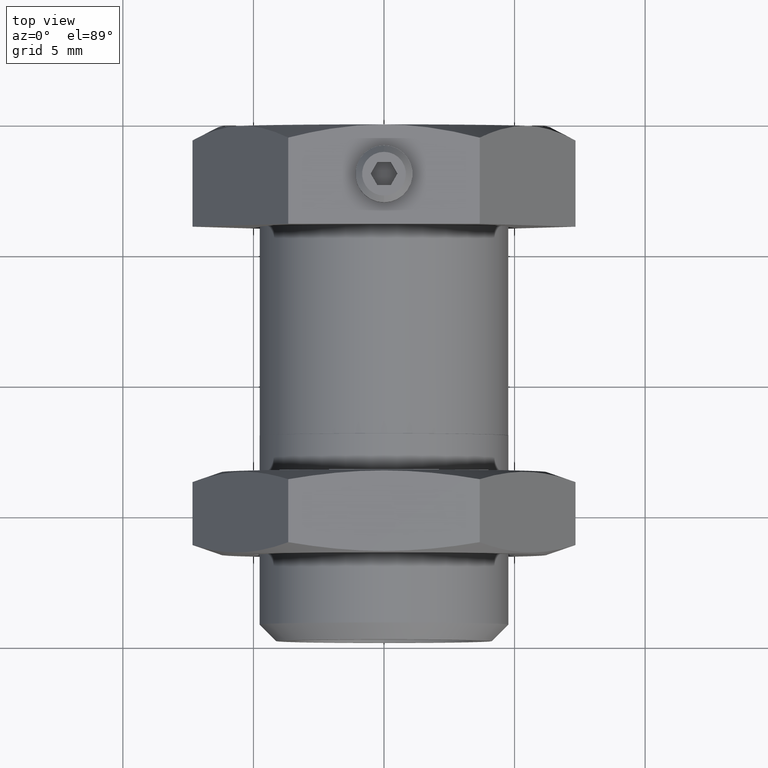
[diagram: clean part render]
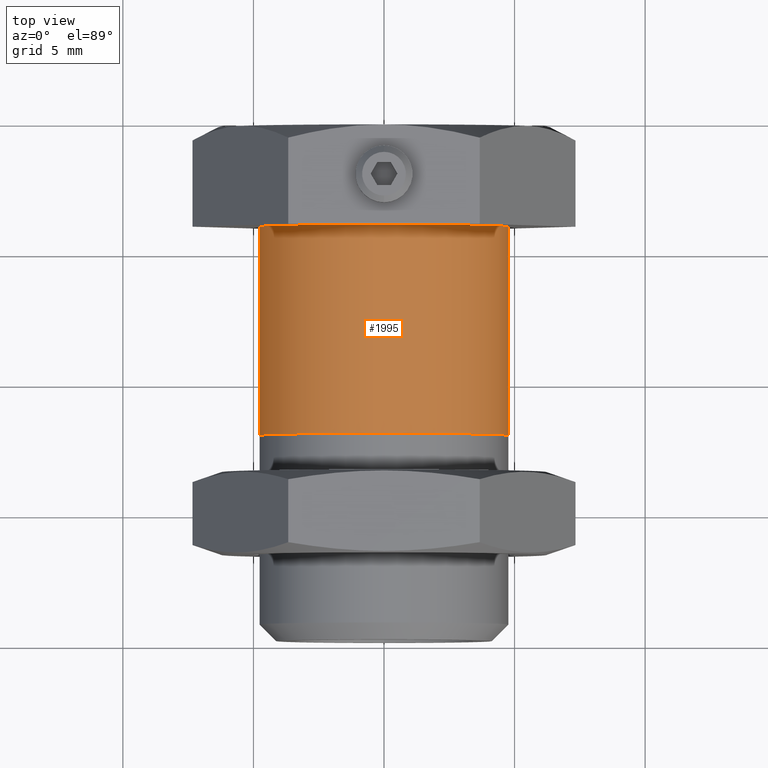
[diagram: same view with one face highlighted and labeled with its STEP entity id]
A machine part, top view. The second image highlights one B-rep face of the part: STEP entity #1995.
In plain terms, the highlighted cylindrical surface (partial cylindrical patch) has radius 4.7562 mm, axis along (-0, 1, 0).
Its self-contained STEP definition (entity closure, byte-faithful):
#82 = AXIS2_PLACEMENT_3D ( 'NONE', #86, #90, #84 ) ;
#83 = CIRCLE ( 'NONE', #82, 4.756150000000000800 ) ;
#84 = DIRECTION ( 'NONE',  ( -1.000000000000000000, -9.118317735862025400E-017, 0.0000000000000000000 ) ) ;
#86 = CARTESIAN_POINT ( 'NONE',  ( 1.300343121710033900E-015, -1.962149999999999400, 0.0000000000000000000 ) ) ;
#90 = DIRECTION ( 'NONE',  ( -1.101551610348493100E-016, 1.000000000000000000, 0.0000000000000000000 ) ) ;
#436 = CARTESIAN_POINT ( 'NONE',  ( -4.756150000000000800, 9.842500000000001100, 0.0000000000000000000 ) ) ;
#438 = VECTOR ( 'NONE', #448, 1000.000000000000000 ) ;
#448 = DIRECTION ( 'NONE',  ( -1.101551610348493100E-016, 1.000000000000000000, 0.0000000000000000000 ) ) ;
#463 = LINE ( 'NONE', #436, #438 ) ;
#519 = CARTESIAN_POINT ( 'NONE',  ( -4.756150000000001700, 6.032499999999998900, 0.0000000000000000000 ) ) ;
#528 = DIRECTION ( 'NONE',  ( -1.000000000000000000, -1.823663547172404600E-016, 0.0000000000000000000 ) ) ;
#533 = DIRECTION ( 'NONE',  ( -1.101551610348493100E-016, 1.000000000000000000, 0.0000000000000000000 ) ) ;
#548 = CIRCLE ( 'NONE', #560, 4.756150000000001700 ) ;
#549 = CARTESIAN_POINT ( 'NONE',  ( 4.196911635427760100E-016, 6.032499999999999800, 0.0000000000000000000 ) ) ;
#560 = AXIS2_PLACEMENT_3D ( 'NONE', #549, #533, #528 ) ;
#692 = FACE_OUTER_BOUND ( 'NONE', #1974, .T. ) ;
#789 = CYLINDRICAL_SURFACE ( 'NONE', #790, 4.756150000000000800 ) ;
#790 = AXIS2_PLACEMENT_3D ( 'NONE', #905, #889, #841 ) ;
#841 = DIRECTION ( 'NONE',  ( -1.000000000000000000, 0.0000000000000000000, 0.0000000000000000000 ) ) ;
#889 = DIRECTION ( 'NONE',  ( -1.101551610348493100E-016, 1.000000000000000000, 0.0000000000000000000 ) ) ;
#905 = CARTESIAN_POINT ( 'NONE',  ( 0.0000000000000000000, 9.842500000000001100, 0.0000000000000000000 ) ) ;
#1643 = CARTESIAN_POINT ( 'NONE',  ( 4.756150000000001700, -1.962149999999999000, 5.824603873764685500E-016 ) ) ;
#1648 = LINE ( 'NONE', #1668, #1667 ) ;
#1660 = CARTESIAN_POINT ( 'NONE',  ( -4.756149999999999900, -1.962149999999999800, 0.0000000000000000000 ) ) ;
#1664 = DIRECTION ( 'NONE',  ( -1.101551610348493100E-016, 1.000000000000000000, 0.0000000000000000000 ) ) ;
#1667 = VECTOR ( 'NONE', #1664, 1000.000000000000000 ) ;
#1668 = CARTESIAN_POINT ( 'NONE',  ( 4.756150000000000800, 9.842500000000001100, 5.824603873764684600E-016 ) ) ;
#1726 = CARTESIAN_POINT ( 'NONE',  ( 4.756150000000001700, 6.032500000000000600, 5.824603873764685500E-016 ) ) ;
#1969 = EDGE_CURVE ( 'NONE', #2130, #1971, #463, .T. ) ;
#1970 = EDGE_CURVE ( 'NONE', #1971, #2122, #548, .T. ) ;
#1971 = VERTEX_POINT ( 'NONE', #519 ) ;
#1974 = EDGE_LOOP ( 'NONE', ( #2150, #1996, #2123, #2135 ) ) ;
#1995 = ADVANCED_FACE ( 'NONE', ( #692 ), #789, .T. ) ;
#1996 = ORIENTED_EDGE ( 'NONE', *, *, #2121, .T. ) ;
#2120 = VERTEX_POINT ( 'NONE', #1643 ) ;
#2121 = EDGE_CURVE ( 'NONE', #2120, #2122, #1648, .T. ) ;
#2122 = VERTEX_POINT ( 'NONE', #1726 ) ;
#2123 = ORIENTED_EDGE ( 'NONE', *, *, #1970, .F. ) ;
#2130 = VERTEX_POINT ( 'NONE', #1660 ) ;
#2135 = ORIENTED_EDGE ( 'NONE', *, *, #1969, .F. ) ;
#2150 = ORIENTED_EDGE ( 'NONE', *, *, #2166, .T. ) ;
#2166 = EDGE_CURVE ( 'NONE', #2130, #2120, #83, .T. ) ;